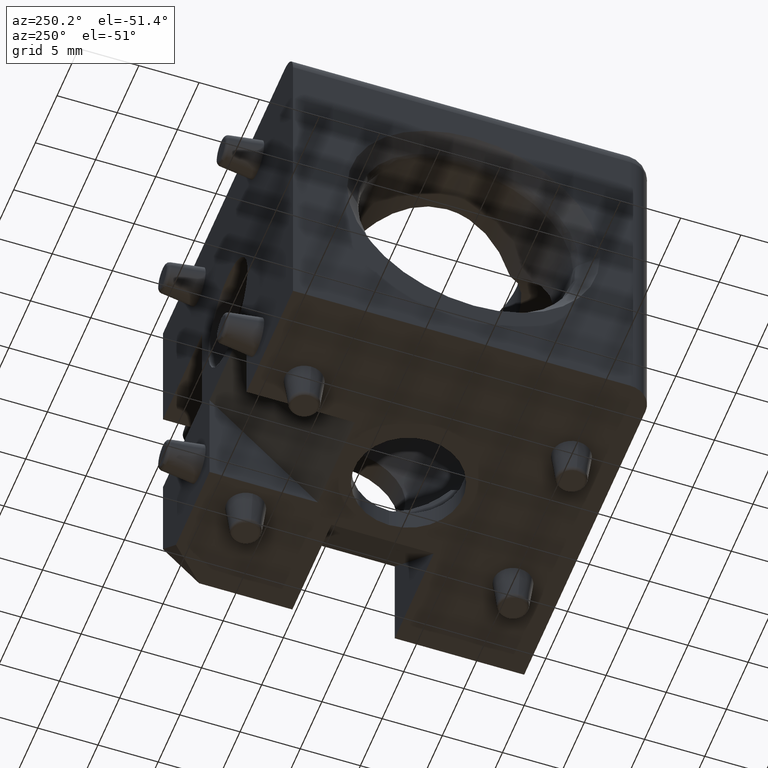
[diagram: clean part render]
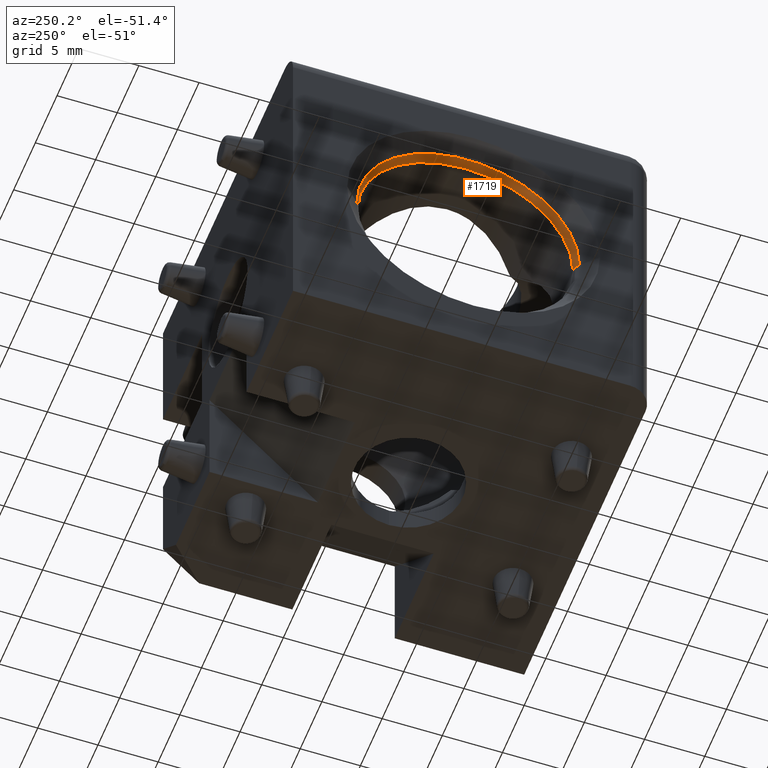
[diagram: same view with one face highlighted and labeled with its STEP entity id]
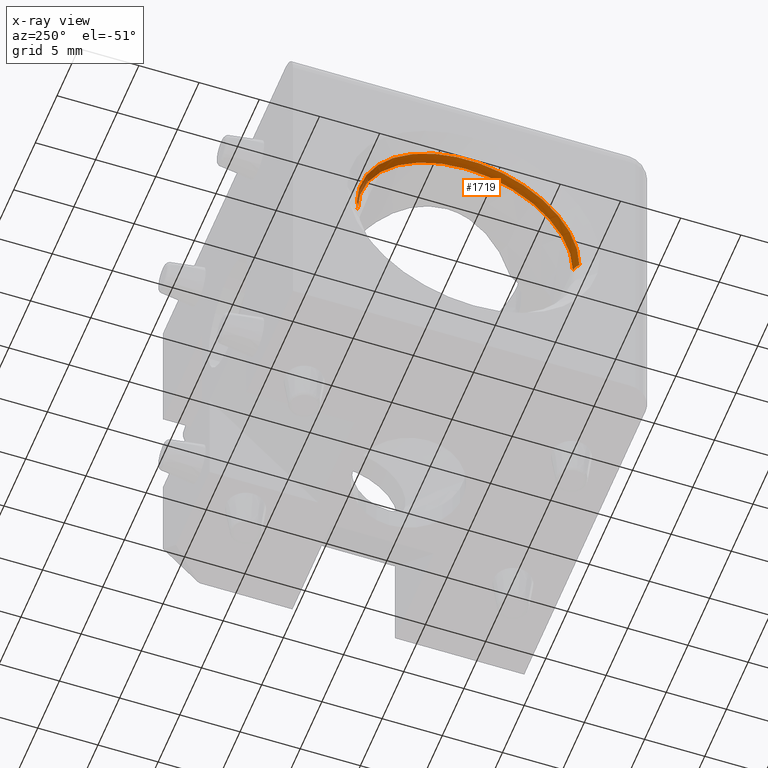
[diagram: x-ray of the same camera — body ghosted, the highlighted face saturated]
A machine part, auxiliary view. The second image highlights one B-rep face of the part: STEP entity #1719.
The next image is the same camera in x-ray: the body ghosted, the highlighted face saturated — about 0% of this face is hidden behind the body in this view.
In plain terms, the highlighted toroidal blend (fillet) surface has major radius 9.9489 mm and minor (blend) radius 1 mm.
Its self-contained STEP definition (entity closure, byte-faithful):
#339=FACE_OUTER_BOUND('',#455,.T.);
#455=EDGE_LOOP('',(#1165,#1166,#1167,#1168,#1169));
#595=CIRCLE('',#1846,8.94922136262741);
#596=CIRCLE('',#1847,1.);
#597=CIRCLE('',#1848,9.24177190641642);
#598=CIRCLE('',#1849,0.999999999999999);
#599=CIRCLE('',#1850,8.94922136262741);
#741=VERTEX_POINT('',#2742);
#742=VERTEX_POINT('',#2743);
#743=VERTEX_POINT('',#2745);
#744=VERTEX_POINT('',#2747);
#745=VERTEX_POINT('',#2749);
#900=EDGE_CURVE('',#741,#742,#595,.T.);
#901=EDGE_CURVE('',#741,#743,#596,.T.);
#902=EDGE_CURVE('',#744,#743,#597,.T.);
#903=EDGE_CURVE('',#745,#744,#598,.T.);
#904=EDGE_CURVE('',#742,#745,#599,.T.);
#1165=ORIENTED_EDGE('',*,*,#900,.F.);
#1166=ORIENTED_EDGE('',*,*,#901,.T.);
#1167=ORIENTED_EDGE('',*,*,#902,.F.);
#1168=ORIENTED_EDGE('',*,*,#903,.F.);
#1169=ORIENTED_EDGE('',*,*,#904,.F.);
#1689=TOROIDAL_SURFACE('',#1845,9.94887868760296,1.);
#1719=ADVANCED_FACE('',(#339),#1689,.T.);
#1845=AXIS2_PLACEMENT_3D('',#2741,#2119,#2120);
#1846=AXIS2_PLACEMENT_3D('',#2744,#2121,#2122);
#1847=AXIS2_PLACEMENT_3D('',#2746,#2123,#2124);
#1848=AXIS2_PLACEMENT_3D('',#2748,#2125,#2126);
#1849=AXIS2_PLACEMENT_3D('',#2750,#2127,#2128);
#1850=AXIS2_PLACEMENT_3D('',#2751,#2129,#2130);
#2119=DIRECTION('center_axis',(1.,-1.51417776287149E-18,0.));
#2120=DIRECTION('ref_axis',(0.,1.,0.));
#2121=DIRECTION('center_axis',(-1.,0.,0.));
#2122=DIRECTION('ref_axis',(0.,0.,1.));
#2123=DIRECTION('center_axis',(1.85433295064067E-34,1.22464679914735E-16,
1.));
#2124=DIRECTION('ref_axis',(0.,-1.,1.22464679914735E-16));
#2125=DIRECTION('center_axis',(1.,0.,0.));
#2126=DIRECTION('ref_axis',(0.,-1.,0.));
#2127=DIRECTION('center_axis',(0.,0.,-1.));
#2128=DIRECTION('ref_axis',(-1.,0.,0.));
#2129=DIRECTION('center_axis',(-1.,0.,0.));
#2130=DIRECTION('ref_axis',(0.,0.,1.));
#2741=CARTESIAN_POINT('Origin',(-13.0346651252299,1.17568295728548E-17,
0.));
#2742=CARTESIAN_POINT('',(-13.0608420735377,-8.94922136262741,1.11387708401228E-15));
#2743=CARTESIAN_POINT('',(-13.0608420735377,0.,8.94922136262741));
#2744=CARTESIAN_POINT('Origin',(-13.0608420735377,1.17964661258825E-17,
0.));
#2745=CARTESIAN_POINT('',(-13.7417719064164,-9.24177190641642,0.));
#2746=CARTESIAN_POINT('Origin',(-13.0346651252299,-9.94887868760296,1.21838624398783E-15));
#2747=CARTESIAN_POINT('',(-13.7417719064164,9.24177190641642,1.2088348887345E-15));
#2748=CARTESIAN_POINT('Origin',(-13.7417719064164,1.28275149369032E-17,
0.));
#2749=CARTESIAN_POINT('',(-13.0608420735377,8.94922136262741,0.));
#2750=CARTESIAN_POINT('Origin',(-13.0346651252299,9.94887868760296,0.));
#2751=CARTESIAN_POINT('Origin',(-13.0608420735377,1.17964661258825E-17,
0.));